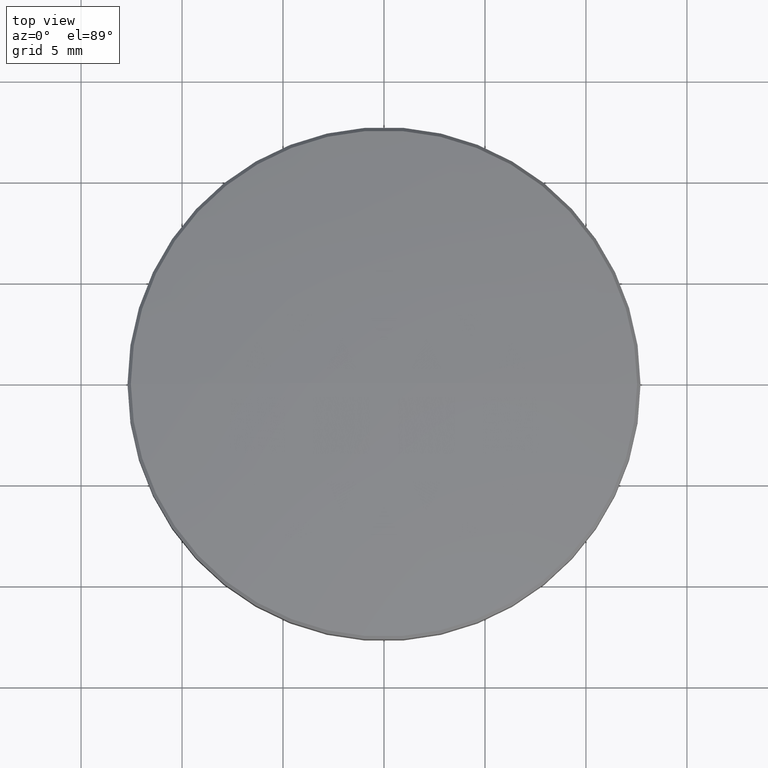
[diagram: clean part render]
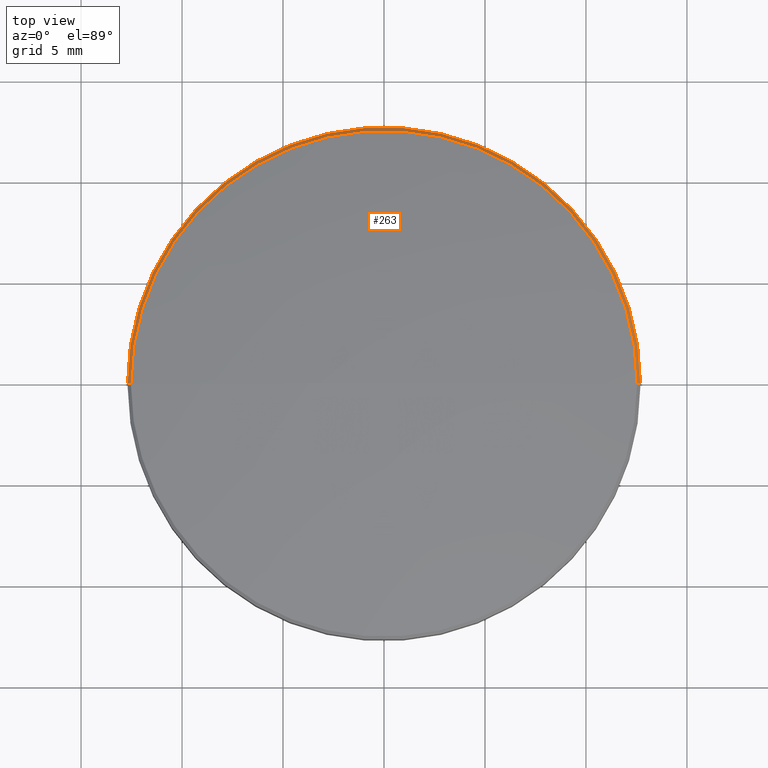
[diagram: same view with one face highlighted and labeled with its STEP entity id]
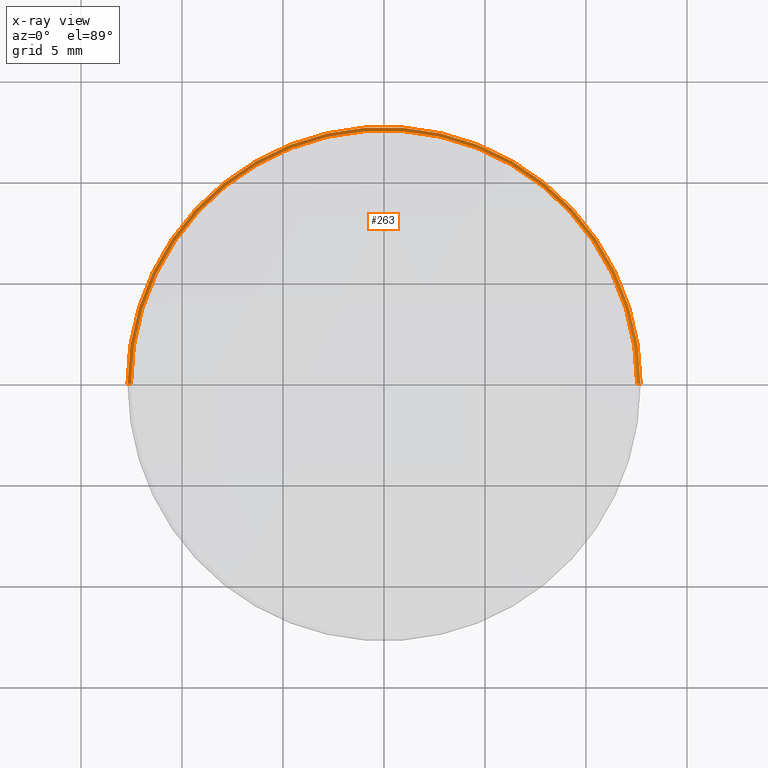
[diagram: x-ray of the same camera — body ghosted, the highlighted face saturated]
A machine part, top view. The second image highlights one B-rep face of the part: STEP entity #263.
The next image is the same camera in x-ray: the body ghosted, the highlighted face saturated — about 0% of this face is hidden behind the body in this view.
In plain terms, the highlighted conical surface has half-angle 39.963 deg.
Its self-contained STEP definition (entity closure, byte-faithful):
#1 = ORIENTED_EDGE ( 'NONE', *, *, #107, .F. ) ;
#10 = CONICAL_SURFACE ( 'NONE', #119, 12.53498460677301729, 0.6974843652732920507 ) ;
#34 = CIRCLE ( 'NONE', #145, 12.53498460677301907 ) ;
#35 = DIRECTION ( 'NONE',  ( -0.6422915872619319178, 0.000000000000000000, -0.7664603818414543746 ) ) ;
#37 = VERTEX_POINT ( 'NONE', #116 ) ;
#49 = LINE ( 'NONE', #144, #55 ) ;
#51 = DIRECTION ( 'NONE',  ( 1.000000000000000000, 0.000000000000000000, 0.000000000000000000 ) ) ;
#55 = VECTOR ( 'NONE', #35, 1000.000000000000227 ) ;
#57 = EDGE_LOOP ( 'NONE', ( #1, #80, #211, #208 ) ) ;
#70 = CARTESIAN_POINT ( 'NONE',  ( 0.000000000000000000, 0.000000000000000000, 3.698237612947643971 ) ) ;
#72 = CARTESIAN_POINT ( 'NONE',  ( 0.000000000000000000, 0.000000000000000000, 3.895154035038178364 ) ) ;
#79 = DIRECTION ( 'NONE',  ( -1.000000000000000000, 0.000000000000000000, 0.000000000000000000 ) ) ;
#80 = ORIENTED_EDGE ( 'NONE', *, *, #106, .T. ) ;
#83 = VERTEX_POINT ( 'NONE', #92 ) ;
#92 = CARTESIAN_POINT ( 'NONE',  ( 12.53498460677301729, 1.535092877604591061E-15, 3.895154035038178364 ) ) ;
#94 = CARTESIAN_POINT ( 'NONE',  ( -12.53498460677301729, 0.000000000000000000, 3.895154035038178364 ) ) ;
#106 = EDGE_CURVE ( 'NONE', #83, #37, #122, .T. ) ;
#107 = EDGE_CURVE ( 'NONE', #83, #170, #34, .T. ) ;
#116 = CARTESIAN_POINT ( 'NONE',  ( 12.69999999999999929, 1.555301434917138433E-15, 3.698237612947643971 ) ) ;
#117 = EDGE_CURVE ( 'NONE', #183, #37, #252, .T. ) ;
#119 = AXIS2_PLACEMENT_3D ( 'NONE', #151, #223, #79 ) ;
#120 = CARTESIAN_POINT ( 'NONE',  ( -12.69999999999999929, 0.000000000000000000, 3.698237612947643971 ) ) ;
#122 = LINE ( 'NONE', #141, #266 ) ;
#126 = FACE_OUTER_BOUND ( 'NONE', #57, .T. ) ;
#141 = CARTESIAN_POINT ( 'NONE',  ( 12.53498460677301729, 1.535092877604592047E-15, 3.895154035038178364 ) ) ;
#144 = CARTESIAN_POINT ( 'NONE',  ( -12.53498460677301729, 0.000000000000000000, 3.895154035038178364 ) ) ;
#145 = AXIS2_PLACEMENT_3D ( 'NONE', #72, #162, #163 ) ;
#151 = CARTESIAN_POINT ( 'NONE',  ( 0.000000000000000000, 0.000000000000000000, 3.895154035038178364 ) ) ;
#162 = DIRECTION ( 'NONE',  ( -0.000000000000000000, -0.000000000000000000, 1.000000000000000000 ) ) ;
#163 = DIRECTION ( 'NONE',  ( -1.000000000000000000, 0.000000000000000000, 0.000000000000000000 ) ) ;
#170 = VERTEX_POINT ( 'NONE', #94 ) ;
#183 = VERTEX_POINT ( 'NONE', #120 ) ;
#184 = AXIS2_PLACEMENT_3D ( 'NONE', #70, #213, #51 ) ;
#208 = ORIENTED_EDGE ( 'NONE', *, *, #235, .F. ) ;
#211 = ORIENTED_EDGE ( 'NONE', *, *, #117, .F. ) ;
#213 = DIRECTION ( 'NONE',  ( 0.000000000000000000, 0.000000000000000000, -1.000000000000000000 ) ) ;
#223 = DIRECTION ( 'NONE',  ( 0.000000000000000000, 0.000000000000000000, -1.000000000000000000 ) ) ;
#235 = EDGE_CURVE ( 'NONE', #170, #183, #49, .T. ) ;
#236 = DIRECTION ( 'NONE',  ( 0.6422915872619319178, 7.865803364595977467E-17, -0.7664603818414543746 ) ) ;
#252 = CIRCLE ( 'NONE', #184, 12.69999999999999929 ) ;
#263 = ADVANCED_FACE ( 'NONE', ( #126 ), #10, .T. ) ;
#266 = VECTOR ( 'NONE', #236, 1000.000000000000227 ) ;